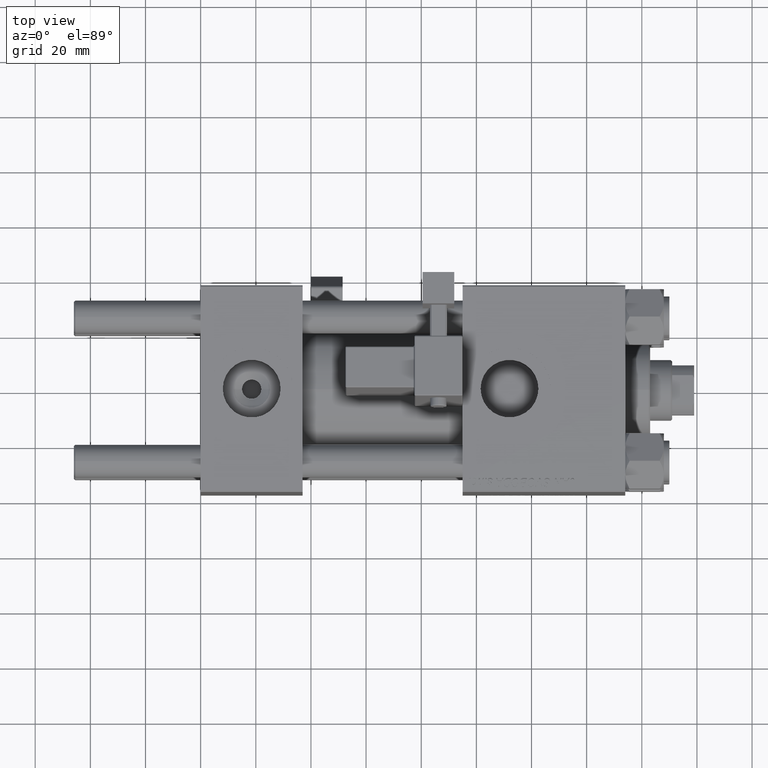
[diagram: clean part render]
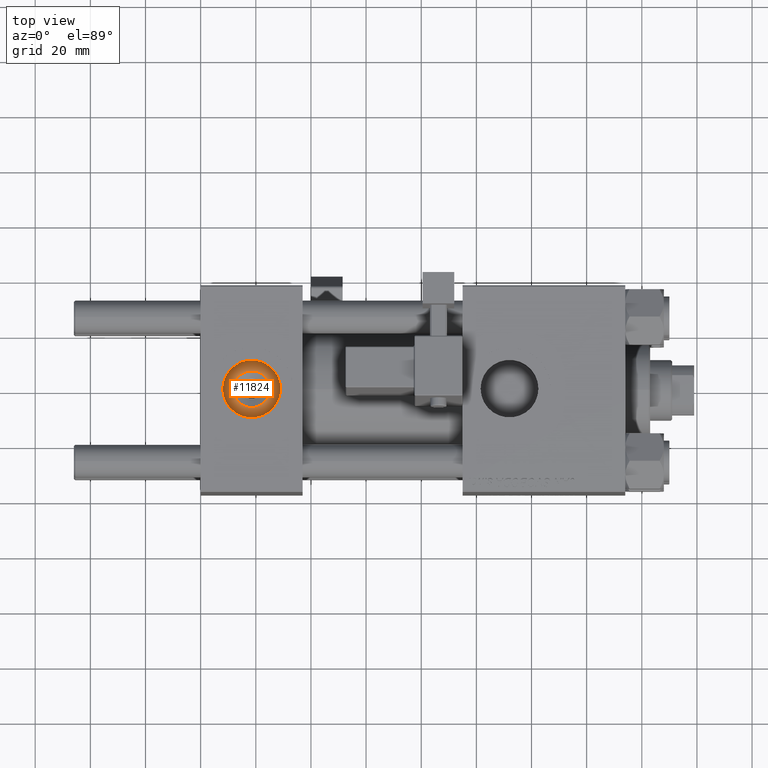
[diagram: same view with one face highlighted and labeled with its STEP entity id]
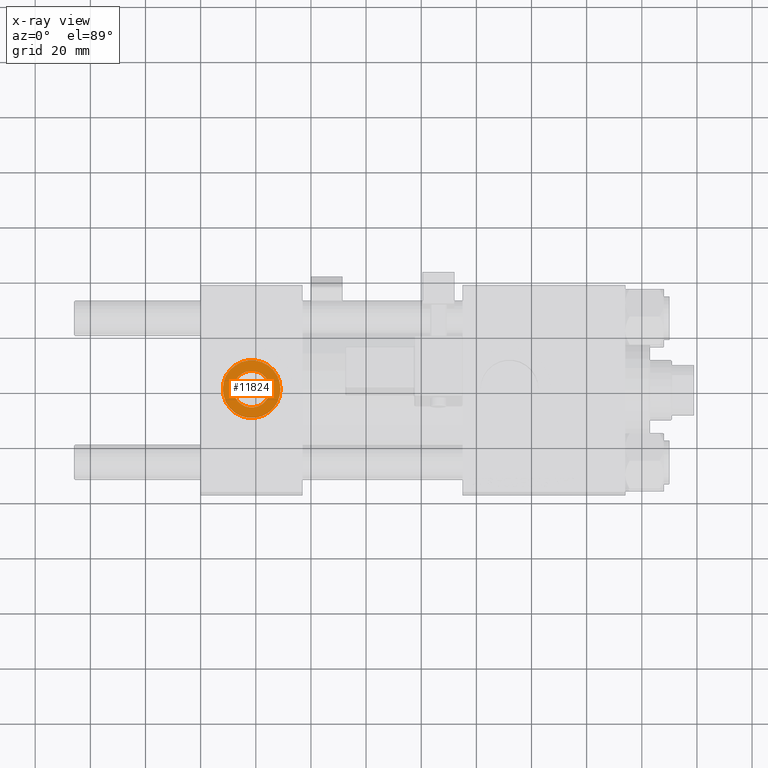
[diagram: x-ray of the same camera — body ghosted, the highlighted face saturated]
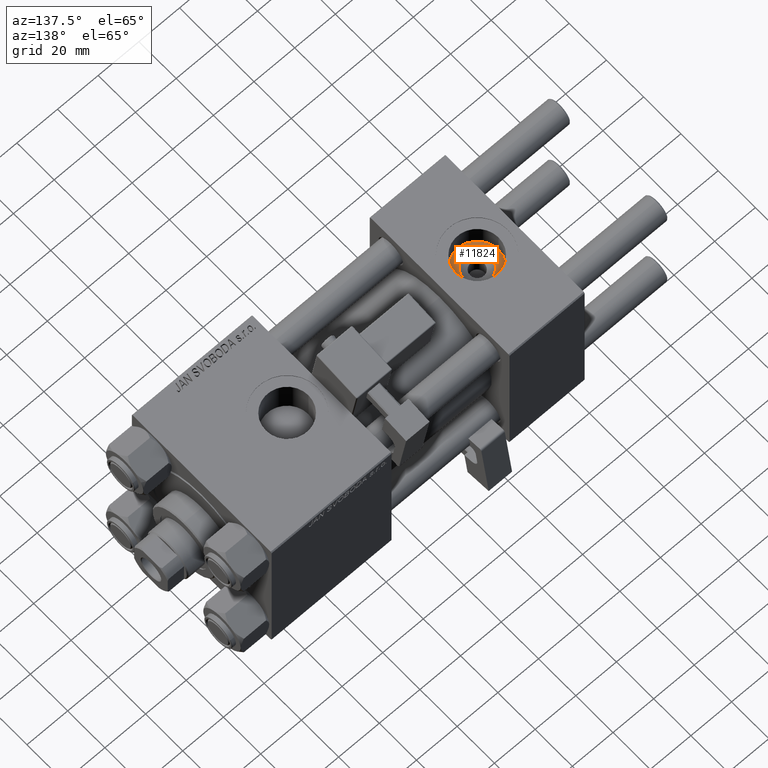
[diagram: same view with one face highlighted and labeled with its STEP entity id]
A machine part, top view. The second image highlights one B-rep face of the part: STEP entity #11824.
The next image is the same camera in x-ray: the body ghosted, the highlighted face saturated — about 0% of this face is hidden behind the body in this view.
A second angle (auxiliary view) of the same face is appended — the face is thin or edge-on in the first view.
In plain terms, the highlighted planar face has unit normal (0, 0, 1).
Its self-contained STEP definition (entity closure, byte-faithful):
#262 = CARTESIAN_POINT ( 'NONE',  ( 25.13999999999997925, -5.204170427930421283E-15, 26.69999999999999929 ) ) ;
#429 = DIRECTION ( 'NONE',  ( 1.000000000000000000, 0.000000000000000000, 0.000000000000000000 ) ) ;
#666 = ORIENTED_EDGE ( 'NONE', *, *, #22328, .T. ) ;
#1393 = DIRECTION ( 'NONE',  ( -0.000000000000000000, -0.000000000000000000, -1.000000000000000000 ) ) ;
#2351 = VERTEX_POINT ( 'NONE', #23206 ) ;
#3279 = DIRECTION ( 'NONE',  ( 1.000000000000000000, 0.000000000000000000, 0.000000000000000000 ) ) ;
#7210 = CARTESIAN_POINT ( 'NONE',  ( 18.50000000000000000, -5.204170427930421283E-15, 26.69999999999999929 ) ) ;
#7282 = AXIS2_PLACEMENT_3D ( 'NONE', #25279, #1393, #22359 ) ;
#11824 = ADVANCED_FACE ( 'NONE', ( #25704, #42519 ), #34616, .T. ) ;
#17823 = DIRECTION ( 'NONE',  ( 1.000000000000000000, 0.000000000000000000, -0.000000000000000000 ) ) ;
#17836 = ORIENTED_EDGE ( 'NONE', *, *, #36305, .T. ) ;
#17977 = VERTEX_POINT ( 'NONE', #44778 ) ;
#20762 = EDGE_LOOP ( 'NONE', ( #17836, #43779 ) ) ;
#21419 = CARTESIAN_POINT ( 'NONE',  ( 18.50000000000000000, -5.204170427930421283E-15, 26.69999999999999929 ) ) ;
#22328 = EDGE_CURVE ( 'NONE', #40571, #42350, #37781, .T. ) ;
#22359 = DIRECTION ( 'NONE',  ( 1.000000000000000000, 0.000000000000000000, 0.000000000000000000 ) ) ;
#22999 = CIRCLE ( 'NONE', #43144, 10.48000000000000043 ) ;
#23206 = CARTESIAN_POINT ( 'NONE',  ( 28.98000000000000043, -5.204170427930421283E-15, 26.69999999999999929 ) ) ;
#23482 = DIRECTION ( 'NONE',  ( -0.000000000000000000, -0.000000000000000000, -1.000000000000000000 ) ) ;
#25279 = CARTESIAN_POINT ( 'NONE',  ( 18.50000000000000000, -5.204170427930421283E-15, 26.69999999999999929 ) ) ;
#25704 = FACE_BOUND ( 'NONE', #36633, .T. ) ;
#27686 = AXIS2_PLACEMENT_3D ( 'NONE', #7210, #23482, #3279 ) ;
#27988 = CIRCLE ( 'NONE', #34708, 10.48000000000000043 ) ;
#29555 = DIRECTION ( 'NONE',  ( 0.000000000000000000, 0.000000000000000000, 1.000000000000000000 ) ) ;
#29901 = CIRCLE ( 'NONE', #7282, 6.639999999999979252 ) ;
#30409 = DIRECTION ( 'NONE',  ( 0.000000000000000000, 0.000000000000000000, 1.000000000000000000 ) ) ;
#34315 = EDGE_CURVE ( 'NONE', #17977, #2351, #22999, .T. ) ;
#34616 = PLANE ( 'NONE',  #48394 ) ;
#34708 = AXIS2_PLACEMENT_3D ( 'NONE', #34938, #51754, #47808 ) ;
#34938 = CARTESIAN_POINT ( 'NONE',  ( 18.50000000000000000, -5.204170427930421283E-15, 26.69999999999999929 ) ) ;
#36305 = EDGE_CURVE ( 'NONE', #2351, #17977, #27988, .T. ) ;
#36633 = EDGE_LOOP ( 'NONE', ( #666, #46021 ) ) ;
#37781 = CIRCLE ( 'NONE', #27686, 6.639999999999979252 ) ;
#40571 = VERTEX_POINT ( 'NONE', #262 ) ;
#42350 = VERTEX_POINT ( 'NONE', #49191 ) ;
#42519 = FACE_OUTER_BOUND ( 'NONE', #20762, .T. ) ;
#42555 = EDGE_CURVE ( 'NONE', #42350, #40571, #29901, .T. ) ;
#42785 = CARTESIAN_POINT ( 'NONE',  ( 18.50000000000000000, -5.204170427930421283E-15, 26.69999999999999929 ) ) ;
#43144 = AXIS2_PLACEMENT_3D ( 'NONE', #21419, #29555, #429 ) ;
#43779 = ORIENTED_EDGE ( 'NONE', *, *, #34315, .T. ) ;
#44778 = CARTESIAN_POINT ( 'NONE',  ( 8.019999999999999574, -3.920740582423995006E-15, 26.69999999999999929 ) ) ;
#46021 = ORIENTED_EDGE ( 'NONE', *, *, #42555, .T. ) ;
#47808 = DIRECTION ( 'NONE',  ( 1.000000000000000000, 0.000000000000000000, 0.000000000000000000 ) ) ;
#48394 = AXIS2_PLACEMENT_3D ( 'NONE', #42785, #30409, #17823 ) ;
#49191 = CARTESIAN_POINT ( 'NONE',  ( 11.86000000000001897, -4.391004953296581540E-15, 26.69999999999999929 ) ) ;
#51754 = DIRECTION ( 'NONE',  ( 0.000000000000000000, 0.000000000000000000, 1.000000000000000000 ) ) ;